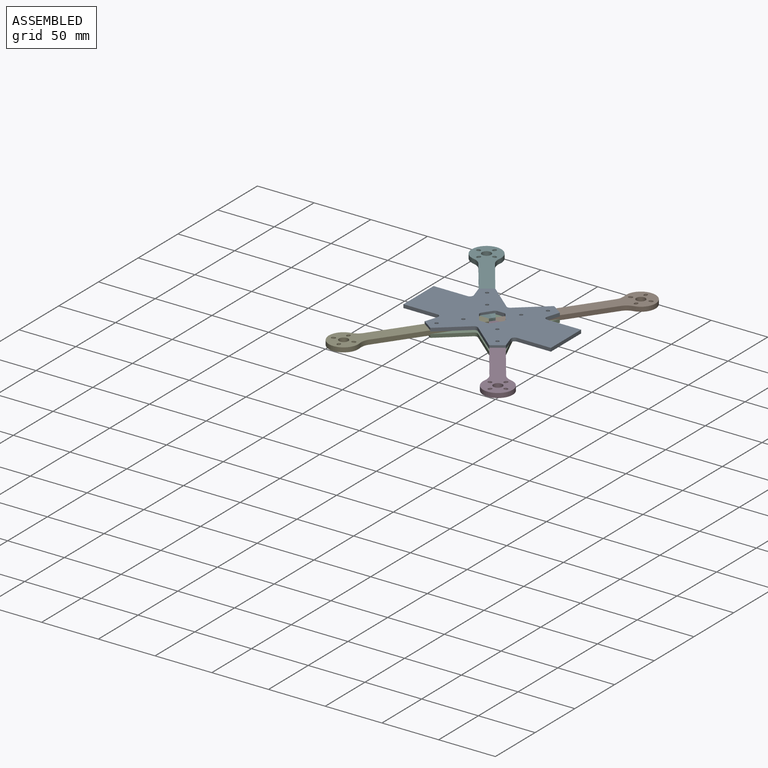
[diagram: assembled view]
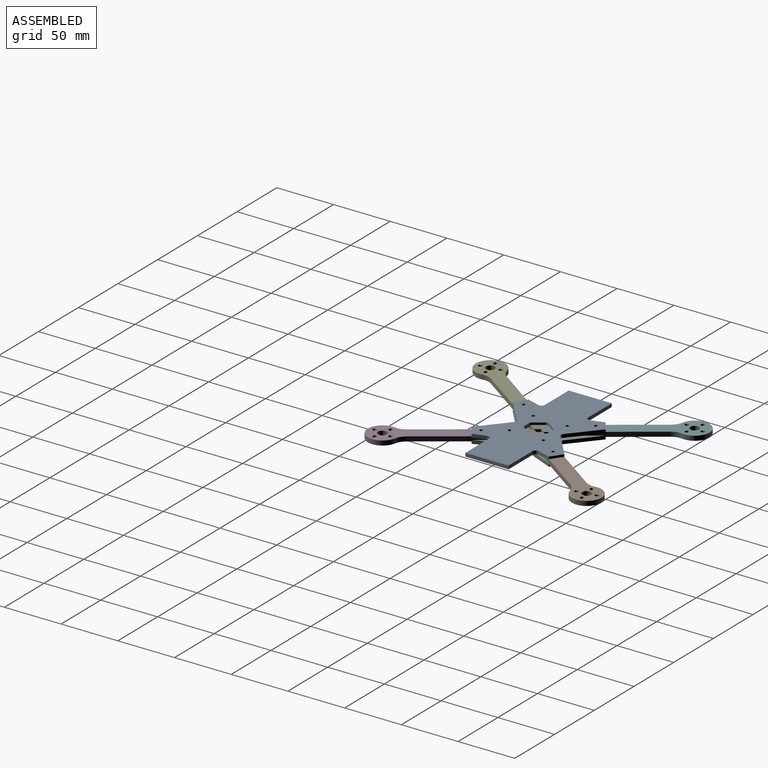
[diagram: assembled view, second angle]
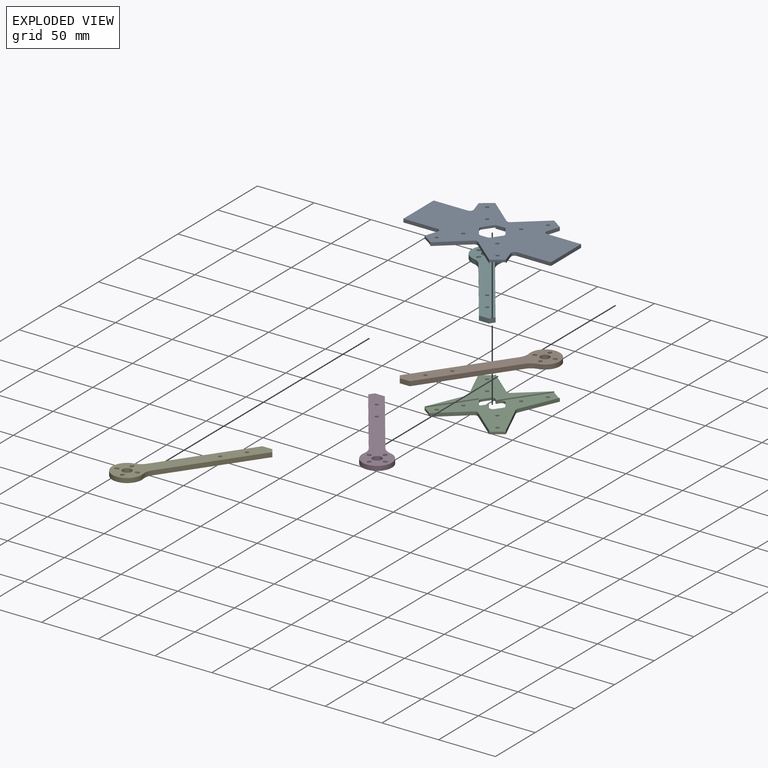
[diagram: exploded view]
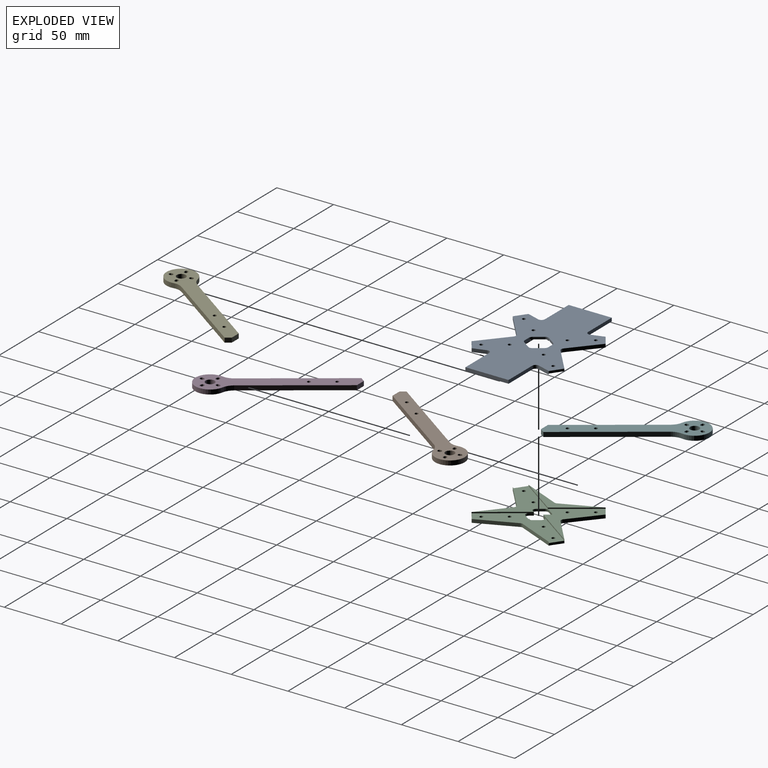
[diagram: exploded view, second angle]
ASSEMBLY  parts=6 mates=5
PART A: 59 faces, bbox 130x81.9x3 mm
  f0: plane 51.95x30.53mm, normal (0,0,-1), area 359.1mm2, adj f6,f20,f21,f41,f43,f49
  f1: plane 51.95x30.53mm, normal (0,0,-1), area 359.1mm2, adj f3,f11,f12,f38,f46,f50
  f2: plane 68x53.25mm, normal (0,0,-1), area 1863.9mm2, adj f14,f15,f16,f17,f18,f39,f40,f55
  f3: plane 8.8x3mm, normal (0,1,0), area 20.2mm2, adj f1,f35,f37,f38,f42,f46,f51,f58
  f4: plane 7.4x5.23mm, normal (0.82,0.58,0), area 18.1mm2, adj f35,f42,f51,f52
  f5: plane 7.4x5.23mm, normal (0.82,-0.58,0), area 18.1mm2, adj f35,f42,f52,f53
  f6: plane 8.8x3mm, normal (0,-1,0), area 20.2mm2, adj f0,f35,f37,f41,f42,f43,f53,f54
  f7: plane 7.4x5.23mm, normal (-0.82,-0.58,0), area 18.1mm2, adj f35,f37,f54,f57
  f8: plane 29.88x3mm, normal (0,-1,0), area 89.6mm2, adj f33,f35,f36,f47
  f9: plane 11.09x3.52mm, normal (-0.95,0.3,0), area 34.9mm2, adj f10,f35,f36,f45,f47
  f10: plane 9.8x6.93mm, normal (-0.58,-0.82,0), area 24mm2, adj f9,f11,f35,f42
  f11: plane 24.04x20.29mm, normal (0.65,-0.76,0), area 94.4mm2, adj f1,f10,f35,f46,f50
  f12: plane 24.04x20.29mm, normal (-0.65,-0.76,0), area 94.4mm2, adj f1,f13,f35,f38,f50
  f13: plane 9.8x6.93mm, normal (0.58,-0.82,0), area 24mm2, adj f12,f14,f35,f37
  f14: plane 11.09x3.52mm, normal (0.95,0.3,0), area 34.9mm2, adj f2,f13,f35,f39,f56
  f15: plane 29.88x3mm, normal (0,-1,0), area 89.6mm2, adj f2,f16,f35,f56
  f16: plane 38x3mm, normal (1,0,0), area 114mm2, adj f2,f15,f17,f35
  f17: plane 29.88x3mm, normal (0,1,0), area 89.6mm2, adj f2,f16,f35,f55
  f18: plane 11.09x3.52mm, normal (0.95,-0.3,0), area 34.9mm2, adj f2,f19,f35,f40,f55
  f19: plane 9.8x6.93mm, normal (0.58,0.82,0), area 24mm2, adj f18,f20,f35,f37
  f20: plane 24.04x20.29mm, normal (-0.65,0.76,0), area 94.4mm2, adj f0,f19,f35,f41,f49
  f21: plane 24.04x20.29mm, normal (0.65,0.76,0), area 94.4mm2, adj f0,f22,f35,f43,f49
  f22: plane 9.8x6.93mm, normal (-0.58,0.82,0), area 24mm2, adj f21,f23,f35,f42
  f23: plane 11.09x3.52mm, normal (-0.95,-0.3,0), area 34.9mm2, adj f22,f35,f36,f44,f48
  f24: plane 29.88x3mm, normal (0,1,0), area 89.6mm2, adj f33,f35,f36,f48
  f25: cylinder r=1.5mm len=3mm, axis (0,0,-1), area 18.8mm2, adj f35,f37
  f26: cylinder r=1.5mm len=3mm, axis (0,0,-1), area 18.8mm2, adj f35,f37
  f27: cylinder r=1.5mm len=3mm, axis (0,0,-1), area 18.8mm2, adj f35,f37
  f28: plane 7.4x5.23mm, normal (-0.82,0.58,0), area 18.1mm2, adj f35,f37,f57,f58
  f29: cylinder r=1.5mm len=3mm, axis (0,0,-1), area 18.8mm2, adj f35,f42
  f30: cylinder r=1.5mm len=3mm, axis (0,0,-1), area 18.8mm2, adj f35,f42
  f31: cylinder r=1.5mm len=3mm, axis (0,0,-1), area 18.8mm2, adj f35,f42
  f32: cylinder r=1.5mm len=3mm, axis (0,0,-1), area 18.8mm2, adj f35,f42
  f33: plane 38x3mm, normal (-1,0,0), area 114mm2, adj f8,f24,f35,f36
  f34: cylinder r=1.5mm len=3mm, axis (0,0,-1), area 18.8mm2, adj f35,f37
  f35: plane 130x81.85mm, normal (0,0,1), area 6288.8mm2, adj f3,f4,f5,f6,f7,f8,f9,f10
  f36: plane 68x53.25mm, normal (0,0,-1), area 1863.9mm2, adj f8,f9,f23,f24,f33,f44,f45,f47
  f37: plane 81.85x32.93mm, normal (0,0,-1), area 921.4mm2, adj f3,f6,f7,f13,f19,f25,f26,f27
  f38: plane 30.53x21.57mm, normal (0.82,0.58,0), area 37.4mm2, adj f1,f3,f12,f37
  f39: plane 34x24.03mm, normal (-0.82,-0.58,0), area 41.6mm2, adj f2,f14,f37,f40
  f40: plane 34x24.03mm, normal (-0.82,0.58,0), area 41.6mm2, adj f2,f18,f37,f39
  f41: plane 30.53x21.57mm, normal (0.82,-0.58,0), area 37.4mm2, adj f0,f6,f20,f37
  f42: plane 81.85x32.93mm, normal (0,0,-1), area 921.4mm2, adj f3,f4,f5,f6,f10,f22,f29,f30
  f43: plane 30.53x21.57mm, normal (-0.82,-0.58,0), area 37.4mm2, adj f0,f6,f21,f42
  f44: plane 34x24.03mm, normal (0.82,0.58,0), area 41.6mm2, adj f23,f36,f42,f45
  f45: plane 34x24.03mm, normal (0.82,-0.58,0), area 41.6mm2, adj f9,f36,f42,f44
  f46: plane 30.53x21.57mm, normal (-0.82,0.58,0), area 37.4mm2, adj f1,f3,f11,f42
  f47: cylinder r=3mm len=3.91mm, axis (0,0,1), area 16.9mm2, adj f8,f9,f35,f36
  f48: cylinder r=3mm len=3.91mm, axis (0,0,-1), area 16.9mm2, adj f23,f24,f35,f36
  f49: cylinder r=3mm len=3.87mm, axis (0,0,1), area 12.6mm2, adj f0,f20,f21,f35
  f50: cylinder r=3mm len=3.87mm, axis (0,0,1), area 12.6mm2, adj f1,f11,f12,f35
  f51: cylinder r=3mm len=2.45mm, axis (0,0,1), area 5.7mm2, adj f3,f4,f35,f42
  f52: cylinder r=3mm len=3.46mm, axis (0,0,-1), area 7.4mm2, adj f4,f5,f35,f42
  f53: cylinder r=3mm len=2.45mm, axis (0,0,1), area 5.7mm2, adj f5,f6,f35,f42
  f54: cylinder r=3mm len=2.45mm, axis (0,0,-1), area 5.7mm2, adj f6,f7,f35,f37
  f55: cylinder r=3mm len=3.91mm, axis (0,0,1), area 16.9mm2, adj f2,f17,f18,f35
  f56: cylinder r=3mm len=3.91mm, axis (0,0,-1), area 16.9mm2, adj f2,f14,f15,f35
  f57: cylinder r=3mm len=3.46mm, axis (0,0,-1), area 7.4mm2, adj f7,f28,f35,f37
  f58: cylinder r=3mm len=2.45mm, axis (0,0,-1), area 5.7mm2, adj f3,f28,f35,f37
PART B: 20 faces, bbox 81x103x4 mm
  f0: plane 72.37x51.14mm, normal (-0.82,0.58,0), area 354.5mm2, adj f5,f7,f8,f18
  f1: cylinder r=13mm len=26mm, axis (0,0,-1), area 243.1mm2, adj f7,f8,f18,f19
  f2: plane 75.12x53.09mm, normal (0.82,-0.58,0), area 368mm2, adj f3,f7,f8,f19
  f3: plane 4.17x4mm, normal (0.82,0.58,0), area 20.4mm2, adj f2,f5,f7,f8
  f4: cylinder r=1.5mm len=4mm, axis (0,0,-1), area 37.7mm2, adj f7,f8
  f5: plane 8.8x4mm, normal (0,1,0), area 35.2mm2, adj f0,f3,f7,f8
  f6: cylinder r=1.5mm len=4mm, axis (0,0,-1), area 37.7mm2, adj f7,f8
  f7: plane 103x81mm, normal (0,0,1), area 1597.8mm2, adj f0,f1,f2,f3,f4,f5,f6,f9
  f8: plane 103x81mm, normal (0,0,-1), area 1597.8mm2, adj f0,f1,f2,f3,f4,f5,f6,f9
  f9: cylinder r=1.5mm len=4mm, axis (0,0,1), area 21.7mm2, adj f7,f8,f10
  f10: cylinder r=1.5mm len=4mm, axis (0,0,1), area 21.7mm2, adj f7,f8,f9
  f11: cylinder r=1.5mm len=4mm, axis (0,0,1), area 21.7mm2, adj f7,f8,f12
  f12: cylinder r=1.5mm len=4mm, axis (0,0,1), area 21.7mm2, adj f7,f8,f11
  f13: cylinder r=1.5mm len=4mm, axis (0,0,1), area 21.7mm2, adj f7,f8,f14
  f14: cylinder r=1.5mm len=4mm, axis (0,0,1), area 21.7mm2, adj f7,f8,f13
  f15: cylinder r=4mm len=8mm, axis (0,0,1), area 100.5mm2, adj f7,f8
  f16: cylinder r=1.5mm len=4mm, axis (0,0,1), area 21.7mm2, adj f7,f8,f17
  f17: cylinder r=1.5mm len=4mm, axis (0,0,1), area 21.7mm2, adj f7,f8,f16
  f18: cylinder r=12mm len=7.55mm, axis (0,0,-1), area 36.8mm2, adj f0,f1,f7,f8
  f19: cylinder r=12mm len=8.74mm, axis (0,0,-1), area 36.8mm2, adj f1,f2,f7,f8
PART C: 49 faces, bbox 71.5x81.9x3 mm
  f0: plane 34x24.03mm, normal (-0.82,0.58,0), area 41.6mm2, adj f3,f14,f35,f36
  f1: plane 34x24.03mm, normal (0.82,-0.58,0), area 41.6mm2, adj f5,f20,f37,f38
  f2: plane 51.95x36.76mm, normal (0,0,-1), area 386.5mm2, adj f8,f9,f22,f23,f39
  f3: plane 68x24.03mm, normal (0,0,-1), area 314.8mm2, adj f0,f13,f14,f35,f40
  f4: plane 51.95x36.76mm, normal (0,0,-1), area 386.5mm2, adj f12,f16,f17,f29,f48
  f5: plane 68x24.03mm, normal (0,0,-1), area 314.8mm2, adj f1,f19,f20,f37,f45
  f6: plane 5.2x3.67mm, normal (-0.82,-0.58,0), area 12.7mm2, adj f34,f36,f41,f47
  f7: plane 5.2x3.67mm, normal (-0.82,0.58,0), area 12.7mm2, adj f34,f36,f41,f42
  f8: plane 36.76x25.97mm, normal (0.82,0.58,0), area 51.8mm2, adj f2,f9,f23,f34,f36,f42
  f9: plane 36.76x25.97mm, normal (-0.82,0.58,0), area 51.8mm2, adj f2,f8,f22,f34,f38,f43
  f10: plane 5.2x3.67mm, normal (0.82,0.58,0), area 12.7mm2, adj f34,f38,f43,f44
  f11: plane 5.2x3.67mm, normal (0.82,-0.58,0), area 12.7mm2, adj f34,f38,f44,f46
  f12: plane 36.76x25.97mm, normal (-0.82,-0.58,0), area 51.8mm2, adj f4,f17,f29,f34,f38,f46
  f13: plane 32.8x14.25mm, normal (0.92,0.4,0), area 107.3mm2, adj f3,f32,f34,f35,f40
  f14: plane 32.8x14.25mm, normal (0.92,-0.4,0), area 107.3mm2, adj f0,f3,f15,f34,f40
  f15: plane 9.8x6.93mm, normal (0.58,0.82,0), area 24mm2, adj f14,f16,f34,f36
  f16: plane 24.04x20.29mm, normal (-0.65,0.76,0), area 94.4mm2, adj f4,f15,f29,f34,f48
  f17: plane 24.04x20.29mm, normal (0.65,0.76,0), area 94.4mm2, adj f4,f12,f18,f34,f48
  f18: plane 9.8x6.93mm, normal (-0.58,0.82,0), area 24mm2, adj f17,f19,f34,f38
  f19: plane 32.8x14.25mm, normal (-0.92,-0.4,0), area 107.3mm2, adj f5,f18,f34,f37,f45
  f20: plane 32.8x14.25mm, normal (-0.92,0.4,0), area 107.3mm2, adj f1,f5,f21,f34,f45
  f21: plane 9.8x6.93mm, normal (-0.58,-0.82,0), area 24mm2, adj f20,f22,f34,f38
  f22: plane 24.04x20.29mm, normal (0.65,-0.76,0), area 94.4mm2, adj f2,f9,f21,f34,f39
  f23: plane 24.04x20.29mm, normal (-0.65,-0.76,0), area 94.4mm2, adj f2,f8,f32,f34,f39
  f24: cylinder r=1.5mm len=3mm, axis (0,0,-1), area 18.8mm2, adj f34,f38
  f25: cylinder r=1.5mm len=3mm, axis (0,0,-1), area 18.8mm2, adj f34,f36
  f26: cylinder r=1.5mm len=3mm, axis (0,0,-1), area 18.8mm2, adj f34,f38
  f27: cylinder r=1.5mm len=3mm, axis (0,0,-1), area 18.8mm2, adj f34,f38
  f28: cylinder r=1.5mm len=3mm, axis (0,0,-1), area 18.8mm2, adj f34,f38
  f29: plane 36.76x25.97mm, normal (0.82,-0.58,0), area 51.8mm2, adj f4,f12,f16,f34,f36,f47
  f30: cylinder r=1.5mm len=3mm, axis (0,0,-1), area 18.8mm2, adj f34,f36
  f31: cylinder r=1.5mm len=3mm, axis (0,0,-1), area 18.8mm2, adj f34,f36
  f32: plane 9.8x6.93mm, normal (0.58,-0.82,0), area 24mm2, adj f13,f23,f34,f36
  f33: cylinder r=1.5mm len=3mm, axis (0,0,-1), area 18.8mm2, adj f34,f36
  f34: plane 81.85x71.55mm, normal (0,0,1), area 3260.6mm2, adj f6,f7,f8,f9,f10,f11,f12,f13
  f35: plane 34x24.03mm, normal (-0.82,-0.58,0), area 41.6mm2, adj f0,f3,f13,f36
  f36: plane 81.85x33.82mm, normal (0,0,-1), area 929mm2, adj f0,f6,f7,f8,f15,f25,f29,f30
  f37: plane 34x24.03mm, normal (0.82,0.58,0), area 41.6mm2, adj f1,f5,f19,f38
  f38: plane 81.85x33.82mm, normal (0,0,-1), area 929mm2, adj f1,f9,f10,f11,f12,f18,f21,f24
  f39: cylinder r=3mm len=3.87mm, axis (0,0,1), area 12.6mm2, adj f2,f22,f23,f34
  f40: cylinder r=3mm len=3mm, axis (0,0,1), area 7.4mm2, adj f3,f13,f14,f34
  f41: cylinder r=3mm len=3.46mm, axis (0,0,-1), area 7.4mm2, adj f6,f7,f34,f36
  f42: cylinder r=3mm len=4.9mm, axis (0,0,1), area 11.5mm2, adj f7,f8,f34,f36
  f43: cylinder r=3mm len=4.9mm, axis (0,0,1), area 11.5mm2, adj f9,f10,f34,f38
  f44: cylinder r=3mm len=3.46mm, axis (0,0,-1), area 7.4mm2, adj f10,f11,f34,f38
  f45: cylinder r=3mm len=3mm, axis (0,0,1), area 7.4mm2, adj f5,f19,f20,f34
  f46: cylinder r=3mm len=4.9mm, axis (0,0,1), area 11.5mm2, adj f11,f12,f34,f38
  f47: cylinder r=3mm len=4.9mm, axis (0,0,1), area 11.5mm2, adj f6,f29,f34,f36
  f48: cylinder r=3mm len=3.87mm, axis (0,0,1), area 12.6mm2, adj f4,f16,f17,f34
PART D: same geometry as B
PART E: same geometry as B
PART F: same geometry as B
PLACE A t=(-40.59,32.51,-51.55)mm
PLACE B rot(axis=(0,0,1),180deg) t=(-40.59,32.51,-54.55)mm
PLACE C rot(axis=(-1,0,0),180deg) t=(-40.59,32.51,-53.55)mm fixed
PLACE D rot(axis=(0,-1,0),180deg) t=(-40.59,32.51,-50.55)mm
PLACE E t=(-40.59,32.51,-54.55)mm
PLACE F rot(axis=(-1,0,0),180deg) t=(-40.59,32.51,-50.55)mm
MATE fastened F.f6 <-> C.f28  axis (0,0,-1) through (-55.59,47.51,-54.55)mm
MATE fastened B.f5 <-> D.f5  axis (0,-1,0) through (-33.25,32.51,-52.55)mm
MATE fastened A.f29 <-> E.f6  axis (0,0,-1) through (-55.59,17.51,-50.55)mm
MATE fastened B.f6 <-> C.f30  axis (0,0,-1) through (-25.59,47.51,-54.55)mm
MATE fastened F.f5 <-> E.f5  axis (0,-1,0) through (-47.94,32.51,-52.55)mm
